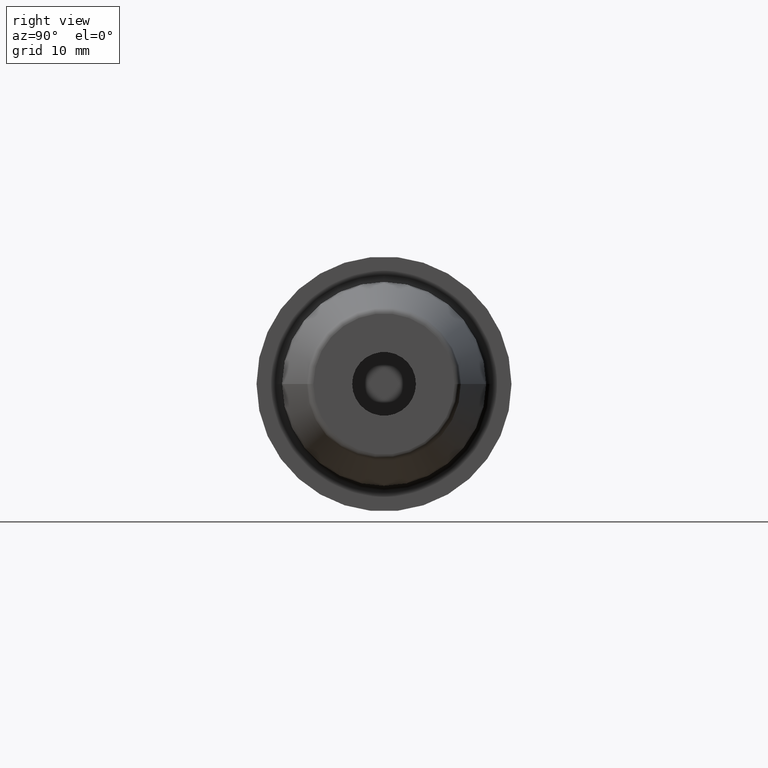
[diagram: clean part render]
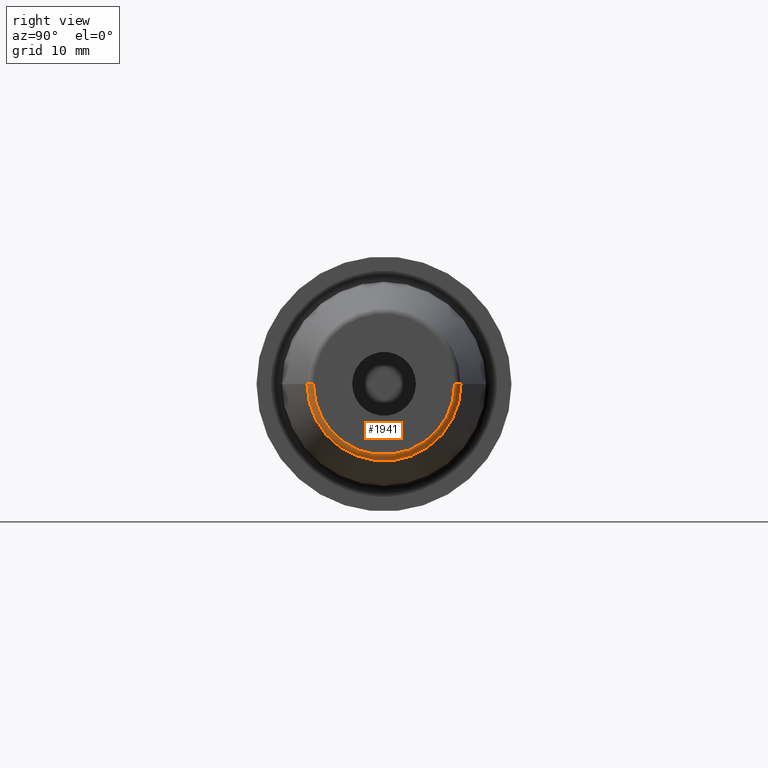
[diagram: same view with one face highlighted and labeled with its STEP entity id]
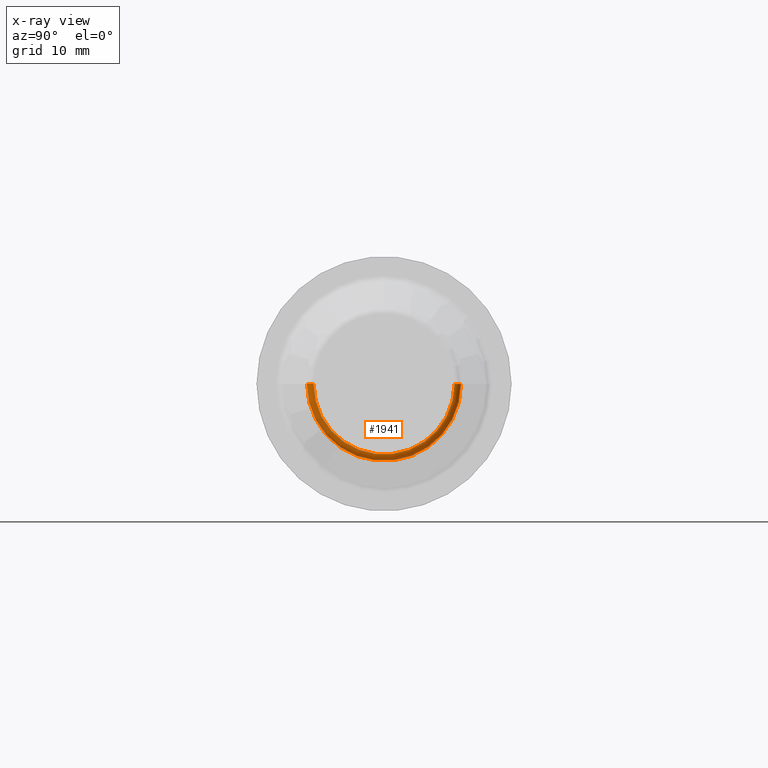
[diagram: x-ray of the same camera — body ghosted, the highlighted face saturated]
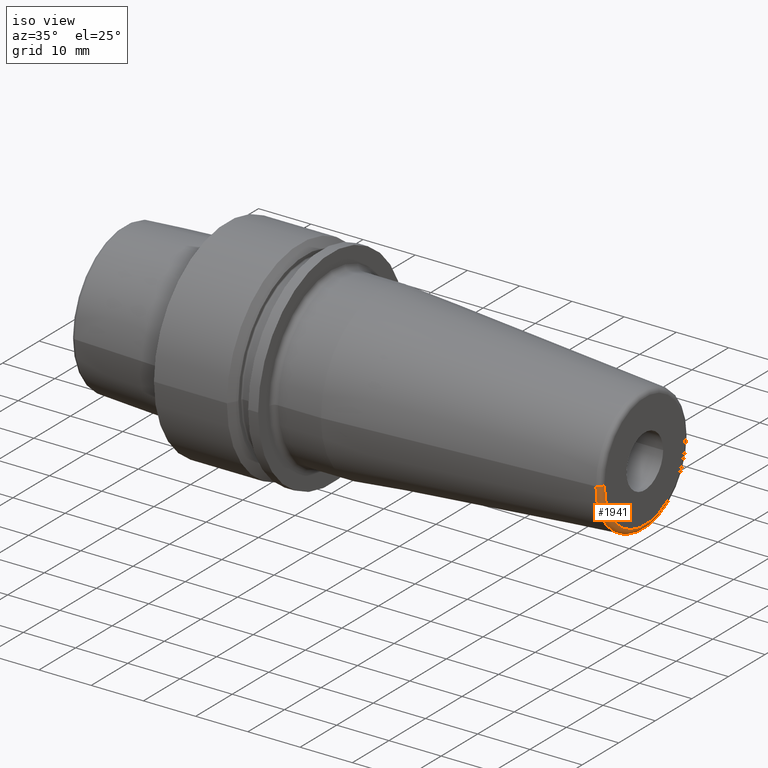
[diagram: same view with one face highlighted and labeled with its STEP entity id]
A machine part, right view. The second image highlights one B-rep face of the part: STEP entity #1941.
The next image is the same camera in x-ray: the body ghosted, the highlighted face saturated — about 0% of this face is hidden behind the body in this view.
A second angle (iso view) of the same face is appended — the face is thin or edge-on in the first view.
In plain terms, the highlighted toroidal blend (fillet) surface has major radius 11.0756 mm and minor (blend) radius 1 mm.
Its self-contained STEP definition (entity closure, byte-faithful):
#670=CARTESIAN_POINT('',(7.907845909573E1,0.E0,0.E0));
#671=DIRECTION('',(-1.E0,0.E0,0.E0));
#672=DIRECTION('',(0.E0,1.E0,0.E0));
#673=AXIS2_PLACEMENT_3D('',#670,#671,#672);
#683=CARTESIAN_POINT('',(7.9E1,1.107560950834E1,1.553907003071E-11));
#684=DIRECTION('',(0.E0,1.403000111921E-12,-1.E0));
#685=DIRECTION('',(7.845909572791E-2,9.969173337331E-1,1.398675130804E-12));
#686=AXIS2_PLACEMENT_3D('',#683,#684,#685);
#688=CARTESIAN_POINT('',(7.9E1,-1.107560950834E1,-1.553827899681E-11));
#689=DIRECTION('',(0.E0,-1.402928988259E-12,1.E0));
#690=DIRECTION('',(7.845909572791E-2,-9.969173337331E-1,-1.398604226392E-12));
#691=AXIS2_PLACEMENT_3D('',#688,#689,#690);
#708=CARTESIAN_POINT('',(8.E1,0.E0,0.E0));
#709=DIRECTION('',(-1.E0,0.E0,0.E0));
#710=DIRECTION('',(0.E0,1.E0,0.E0));
#711=AXIS2_PLACEMENT_3D('',#708,#709,#710);
#900=CARTESIAN_POINT('',(7.907845909573E1,1.207252684207E1,0.E0));
#901=CARTESIAN_POINT('',(7.907845909573E1,-1.207252684207E1,0.E0));
#902=VERTEX_POINT('',#900);
#903=VERTEX_POINT('',#901);
#904=CARTESIAN_POINT('',(8.E1,1.107560950834E1,-1.279768816509E-14));
#905=CARTESIAN_POINT('',(8.E1,-1.107560950834E1,1.144131719179E-14));
#906=VERTEX_POINT('',#904);
#907=VERTEX_POINT('',#905);
#1927=CARTESIAN_POINT('',(7.9E1,0.E0,0.E0));
#1928=DIRECTION('',(1.E0,0.E0,0.E0));
#1929=DIRECTION('',(0.E0,9.999860585694E-1,5.280404032496E-3));
#1930=AXIS2_PLACEMENT_3D('',#1927,#1928,#1929);
#1931=TOROIDAL_SURFACE('',#1930,1.107560950834E1,1.E0);
#1932=ORIENTED_EDGE('',*,*,#1917,.T.);
#1934=ORIENTED_EDGE('',*,*,#1933,.T.);
#1936=ORIENTED_EDGE('',*,*,#1935,.F.);
#1938=ORIENTED_EDGE('',*,*,#1937,.F.);
#1939=EDGE_LOOP('',(#1932,#1934,#1936,#1938));
#1940=FACE_OUTER_BOUND('',#1939,.F.);
#1941=ADVANCED_FACE('',(#1940),#1931,.T.);
#674=CIRCLE('',#673,1.207252684207E1);
#687=CIRCLE('',#686,1.E0);
#692=CIRCLE('',#691,1.E0);
#712=CIRCLE('',#711,1.107560950834E1);
#1917=EDGE_CURVE('',#902,#903,#674,.T.);
#1933=EDGE_CURVE('',#903,#907,#692,.T.);
#1935=EDGE_CURVE('',#906,#907,#712,.T.);
#1937=EDGE_CURVE('',#902,#906,#687,.T.);